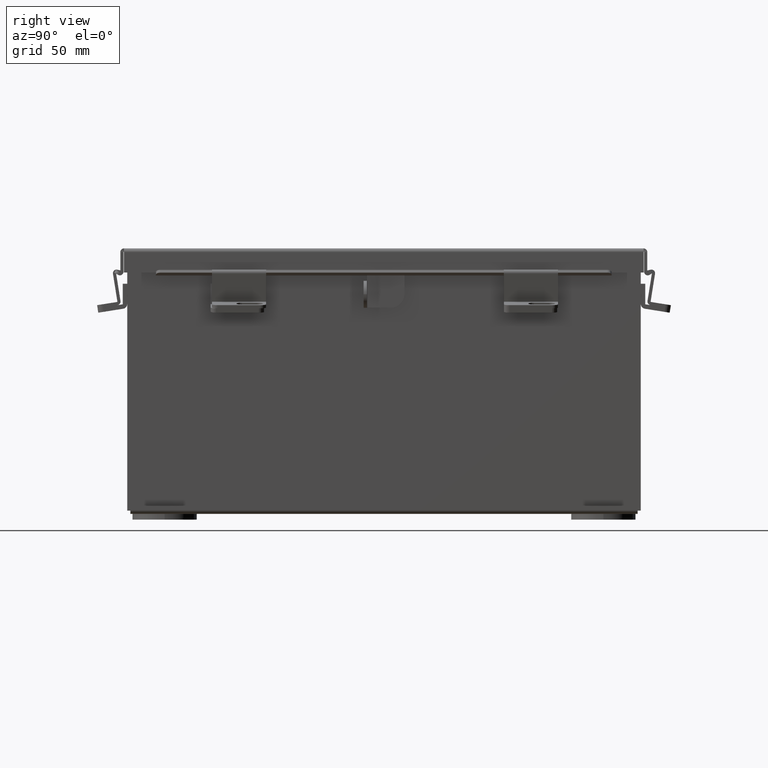
[diagram: clean part render]
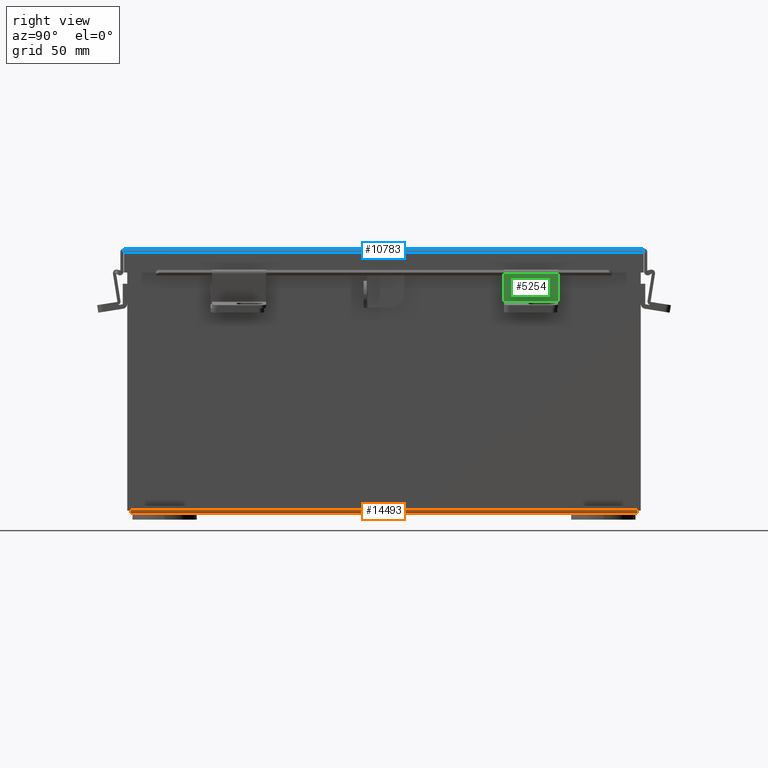
[diagram: same view with three faces highlighted in distinct colors, each labeled with its STEP entity id]
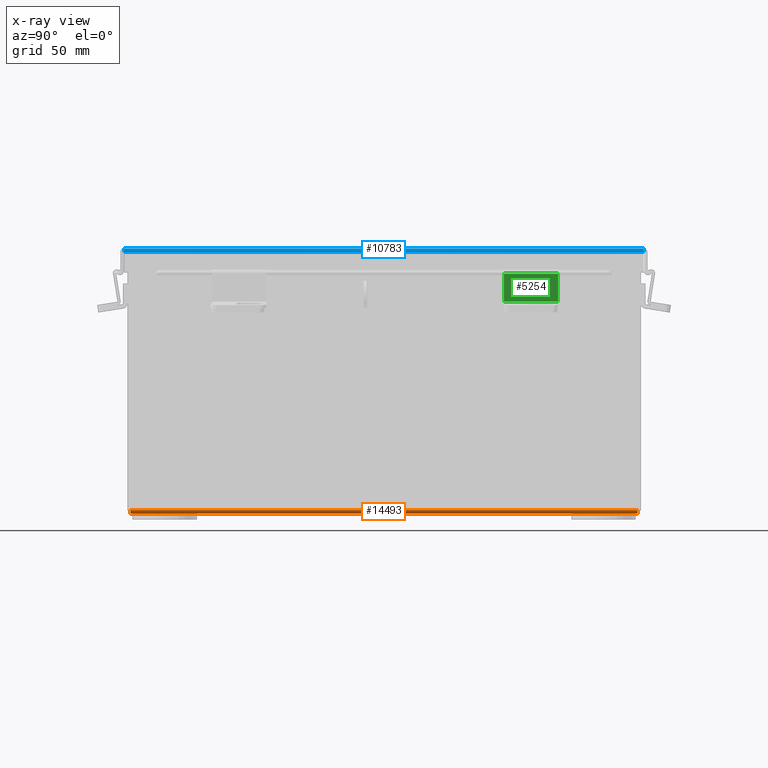
[diagram: x-ray of the same camera — body ghosted, the three highlighted faces saturated]
A machine part, right view with three faces highlighted in distinct colors.
The next image is the same camera in x-ray (body ghosted, the three faces saturated) — at least one of them is partly hidden behind the body in this view.
Their STEP definitions:

[orange] entity #14493 — the highlighted cylindrical surface (edge-blend (fillet) strip) has radius 2.2276 mm, axis along (0, 1, 0).
#335 = CARTESIAN_POINT ( 'NONE',  ( 2.912299999999999200, -5.925300000000000000, -0.07470000000000000300 ) ) ;
#1090 = ORIENTED_EDGE ( 'NONE', *, *, #13892, .F. ) ;
#1809 = ORIENTED_EDGE ( 'NONE', *, *, #7267, .T. ) ;
#1886 = DIRECTION ( 'NONE',  ( -1.593066959076850500E-031, -1.000000000000000000, -4.610480471308228800E-017 ) ) ;
#2710 = CARTESIAN_POINT ( 'NONE',  ( 2.912299999999999200, 5.925300000000000000, 0.01300000000000091900 ) ) ;
#3566 = CYLINDRICAL_SURFACE ( 'NONE', #13938, 0.08770000000000026400 ) ;
#3814 = DIRECTION ( 'NONE',  ( -0.0000000000000000000, -1.000000000000000000, -8.208677865577646300E-017 ) ) ;
#3893 = VERTEX_POINT ( 'NONE', #13418 ) ;
#4218 = CARTESIAN_POINT ( 'NONE',  ( 2.912299999999999200, -5.925300000000000000, 0.01299999999999994600 ) ) ;
#4945 = CARTESIAN_POINT ( 'NONE',  ( 2.999999999999999600, -5.925300000000000000, 0.01299999999999963700 ) ) ;
#5216 = VERTEX_POINT ( 'NONE', #7066 ) ;
#5277 = VERTEX_POINT ( 'NONE', #335 ) ;
#5406 = DIRECTION ( 'NONE',  ( 0.0000000000000000000, 0.0000000000000000000, 1.000000000000000000 ) ) ;
#5456 = CIRCLE ( 'NONE', #14142, 0.08770000000000009700 ) ;
#5617 = VECTOR ( 'NONE', #3814, 39.37007874015748100 ) ;
#5624 = ORIENTED_EDGE ( 'NONE', *, *, #7527, .F. ) ;
#5654 = VECTOR ( 'NONE', #1886, 39.37007874015748100 ) ;
#7066 = CARTESIAN_POINT ( 'NONE',  ( 2.912299999999999200, 5.925299999999997300, -0.07469999999999918400 ) ) ;
#7267 = EDGE_CURVE ( 'NONE', #3893, #15014, #15166, .T. ) ;
#7527 = EDGE_CURVE ( 'NONE', #3893, #5216, #5456, .T. ) ;
#7891 = CARTESIAN_POINT ( 'NONE',  ( 2.999999999999999600, -5.925300000000000000, 0.01299999999999984300 ) ) ;
#7910 = CARTESIAN_POINT ( 'NONE',  ( 2.912299999999999200, 5.925300000000000000, -0.07469999999999918400 ) ) ;
#8002 = DIRECTION ( 'NONE',  ( 0.0000000000000000000, 0.0000000000000000000, 1.000000000000000000 ) ) ;
#8254 = CIRCLE ( 'NONE', #10433, 0.08770000000000009700 ) ;
#8789 = LINE ( 'NONE', #7910, #5617 ) ;
#8816 = EDGE_CURVE ( 'NONE', #5216, #5277, #8789, .T. ) ;
#9741 = EDGE_LOOP ( 'NONE', ( #10903, #5624, #1809, #1090 ) ) ;
#9950 = FACE_OUTER_BOUND ( 'NONE', #9741, .T. ) ;
#10433 = AXIS2_PLACEMENT_3D ( 'NONE', #4218, #12576, #5406 ) ;
#10903 = ORIENTED_EDGE ( 'NONE', *, *, #8816, .F. ) ;
#11121 = DIRECTION ( 'NONE',  ( 1.000000000000000000, 0.0000000000000000000, -3.455694262224952200E-015 ) ) ;
#12576 = DIRECTION ( 'NONE',  ( -0.0000000000000000000, -1.000000000000000000, -8.208677865577646300E-017 ) ) ;
#12855 = CARTESIAN_POINT ( 'NONE',  ( 2.912299999999999200, 5.925299999999997300, 0.01300000000000091900 ) ) ;
#13418 = CARTESIAN_POINT ( 'NONE',  ( 2.999999999999999600, 5.925299999999998200, 0.01300000000000039000 ) ) ;
#13892 = EDGE_CURVE ( 'NONE', #5277, #15014, #8254, .T. ) ;
#13938 = AXIS2_PLACEMENT_3D ( 'NONE', #2710, #14627, #11121 ) ;
#14142 = AXIS2_PLACEMENT_3D ( 'NONE', #12855, #14596, #8002 ) ;
#14493 = ADVANCED_FACE ( 'NONE', ( #9950 ), #3566, .T. ) ;
#14596 = DIRECTION ( 'NONE',  ( 0.0000000000000000000, 1.000000000000000000, 8.208677865577646300E-017 ) ) ;
#14627 = DIRECTION ( 'NONE',  ( 0.0000000000000000000, 1.000000000000000000, 8.208677865577646300E-017 ) ) ;
#15014 = VERTEX_POINT ( 'NONE', #4945 ) ;
#15166 = LINE ( 'NONE', #7891, #5654 ) ;

[blue] entity #10783 — the highlighted cylindrical surface (edge-blend (fillet) strip) has radius 2.2276 mm, axis along (-0, -1, -0).
#145 = LINE ( 'NONE', #8751, #15312 ) ;
#1471 = CARTESIAN_POINT ( 'NONE',  ( -3.068550000000018800, -6.074478932188137400, 0.01300000000000010700 ) ) ;
#1512 = CARTESIAN_POINT ( 'NONE',  ( -3.153967403743831400, -6.073490776823448700, -0.009955289458309212600 ) ) ;
#1659 = EDGE_CURVE ( 'NONE', #7931, #3699, #11394, .T. ) ;
#1704 = CARTESIAN_POINT ( 'NONE',  ( -3.091505289458327700, 6.069538155364688800, -0.07241740374381198900 ) ) ;
#2134 = CARTESIAN_POINT ( 'NONE',  ( -3.153967403743831000, 6.073490776823449600, -0.009955289458309214300 ) ) ;
#2576 = CARTESIAN_POINT ( 'NONE',  ( -3.138680782078339800, -6.072008543776413500, -0.04089574734180055600 ) ) ;
#2715 = CARTESIAN_POINT ( 'NONE',  ( -3.138680782078339300, 6.072008543776413500, -0.04089574734180054900 ) ) ;
#2838 = EDGE_CURVE ( 'NONE', #12186, #7639, #8597, .T. ) ;
#2842 = CARTESIAN_POINT ( 'NONE',  ( -3.112717384578547600, -6.070526310729377400, -0.06363106625866907200 ) ) ;
#3499 = CARTESIAN_POINT ( 'NONE',  ( -3.156250000000019100, -6.074478932188137400, 0.01299999999999901400 ) ) ;
#3661 = CARTESIAN_POINT ( 'NONE',  ( -3.080029903155013100, -6.069044077682347500, -0.07470000000000071000 ) ) ;
#3674 = CARTESIAN_POINT ( 'NONE',  ( -3.122445747341819900, 6.071020388411724000, -0.05713078207832101400 ) ) ;
#3699 = VERTEX_POINT ( 'NONE', #5149 ) ;
#3935 = EDGE_CURVE ( 'NONE', #12186, #3699, #9304, .T. ) ;
#4008 = DIRECTION ( 'NONE',  ( 6.697214100988701600E-031, 1.000000000000000000, 3.106139814307734000E-029 ) ) ;
#4016 = CARTESIAN_POINT ( 'NONE',  ( -3.091505289458328600, -6.069538155364688800, -0.07241740374381196200 ) ) ;
#4764 = CYLINDRICAL_SURFACE ( 'NONE', #8363, 0.08770000000000081900 ) ;
#5045 = CARTESIAN_POINT ( 'NONE',  ( -3.156250000000019500, -6.073984854505791700, 0.001520096845007029700 ) ) ;
#5056 = CARTESIAN_POINT ( 'NONE',  ( -3.068550000000018800, -6.068550000000000100, -0.07470000000000015500 ) ) ;
#5149 = CARTESIAN_POINT ( 'NONE',  ( -3.156250000000019100, 6.074478932188137400, 0.01300000000000010700 ) ) ;
#5354 = CARTESIAN_POINT ( 'NONE',  ( -3.068550000000019200, 6.068550000000000100, -0.07470000000000015500 ) ) ;
#6103 = VECTOR ( 'NONE', #7504, 39.37007874015748100 ) ;
#6225 = CARTESIAN_POINT ( 'NONE',  ( -3.080029903155011400, 6.069044077682344900, -0.07470000000000068300 ) ) ;
#6771 = ORIENTED_EDGE ( 'NONE', *, *, #13797, .F. ) ;
#7504 = DIRECTION ( 'NONE',  ( 6.697214100988701600E-031, 1.000000000000000000, 3.106139814307734000E-029 ) ) ;
#7639 = VERTEX_POINT ( 'NONE', #5056 ) ;
#7702 = CARTESIAN_POINT ( 'NONE',  ( -3.156250000000019500, 6.073984854505791700, 0.001520096845007030400 ) ) ;
#7771 = DIRECTION ( 'NONE',  ( -6.697214100988702500E-031, -1.000000000000000000, -3.106139814307734000E-029 ) ) ;
#7931 = VERTEX_POINT ( 'NONE', #9531 ) ;
#8363 = AXIS2_PLACEMENT_3D ( 'NONE', #1471, #7771, #11044 ) ;
#8597 = B_SPLINE_CURVE_WITH_KNOTS ( 'NONE', 3,
 ( #3499, #5045, #1512, #12275, #2576, #12021, #2842, #4016, #3661, #12380 ),
 .UNSPECIFIED., .F., .F.,
 ( 4, 2, 2, 2, 4 ),
 ( 0.0000000000000000000, 0.2500000000000000600, 0.5000000000000000000, 0.7500000000000000000, 1.000000000000000000 ),
 .UNSPECIFIED. ) ;
#8751 = CARTESIAN_POINT ( 'NONE',  ( -3.068550000000018800, -6.074478932188137400, -0.07470000000000015500 ) ) ;
#9304 = LINE ( 'NONE', #10802, #6103 ) ;
#9531 = CARTESIAN_POINT ( 'NONE',  ( -3.068550000000019200, 6.068550000000000100, -0.07470000000000015500 ) ) ;
#9646 = CARTESIAN_POINT ( 'NONE',  ( -3.112717384578546700, 6.070526310729377400, -0.06363106625866905800 ) ) ;
#10249 = CARTESIAN_POINT ( 'NONE',  ( -3.156250000000019100, 6.074478932188137400, 0.01300000000000010700 ) ) ;
#10312 = ORIENTED_EDGE ( 'NONE', *, *, #1659, .F. ) ;
#10498 = ORIENTED_EDGE ( 'NONE', *, *, #2838, .F. ) ;
#10783 = ADVANCED_FACE ( 'NONE', ( #14334 ), #4764, .T. ) ;
#10802 = CARTESIAN_POINT ( 'NONE',  ( -3.156250000000019100, 6.156249999999998200, 0.01300000000000010700 ) ) ;
#11044 = DIRECTION ( 'NONE',  ( -1.000000000000000000, 0.0000000000000000000, -3.358350761880565600E-015 ) ) ;
#11394 = B_SPLINE_CURVE_WITH_KNOTS ( 'NONE', 3,
 ( #5354, #6225, #1704, #9646, #3674, #2715, #12884, #2134, #7702, #10249 ),
 .UNSPECIFIED., .F., .F.,
 ( 4, 2, 2, 2, 4 ),
 ( 0.0000000000000000000, 0.2500000000000000000, 0.5000000000000000000, 0.7500000000000000000, 1.000000000000000000 ),
 .UNSPECIFIED. ) ;
#12009 = CARTESIAN_POINT ( 'NONE',  ( -3.156250000000019100, -6.074478932188137400, 0.01299999999999901400 ) ) ;
#12021 = CARTESIAN_POINT ( 'NONE',  ( -3.122445747341820300, -6.071020388411725800, -0.05713078207832102800 ) ) ;
#12186 = VERTEX_POINT ( 'NONE', #12009 ) ;
#12275 = CARTESIAN_POINT ( 'NONE',  ( -3.145181066258688300, -6.072502621458758300, -0.03116738457852834300 ) ) ;
#12380 = CARTESIAN_POINT ( 'NONE',  ( -3.068550000000018800, -6.068550000000000100, -0.07470000000000015500 ) ) ;
#12884 = CARTESIAN_POINT ( 'NONE',  ( -3.145181066258688800, 6.072502621458759200, -0.03116738457852834600 ) ) ;
#12981 = EDGE_LOOP ( 'NONE', ( #6771, #10498, #14151, #10312 ) ) ;
#13797 = EDGE_CURVE ( 'NONE', #7639, #7931, #145, .T. ) ;
#14151 = ORIENTED_EDGE ( 'NONE', *, *, #3935, .T. ) ;
#14334 = FACE_OUTER_BOUND ( 'NONE', #12981, .T. ) ;
#15312 = VECTOR ( 'NONE', #4008, 39.37007874015748100 ) ;

[green] entity #5254 — the highlighted planar face has unit normal (-0.9877, 0, 0.1564).
#856 = VECTOR ( 'NONE', #12941, 39.37007874015748100 ) ;
#1881 = PLANE ( 'NONE',  #14061 ) ;
#1941 = DIRECTION ( 'NONE',  ( 2.091651531891702700E-015, 3.330669073875449900E-016, -1.000000000000000000 ) ) ;
#2010 = CARTESIAN_POINT ( 'NONE',  ( 0.6324999999999998400, -0.4174999999999908200, 2.103522955121482700E-014 ) ) ;
#2437 = VECTOR ( 'NONE', #6056, 39.37007874015748100 ) ;
#2555 = CARTESIAN_POINT ( 'NONE',  ( -0.6324999999999998400, 0.3243453803252517900, 5.736880786694953000E-015 ) ) ;
#2822 = LINE ( 'NONE', #13234, #2437 ) ;
#4470 = VERTEX_POINT ( 'NONE', #4649 ) ;
#4613 = DIRECTION ( 'NONE',  ( -1.000000000000000000, -3.560584499718061100E-016, -2.091651531891702700E-015 ) ) ;
#4649 = CARTESIAN_POINT ( 'NONE',  ( 0.6324999999999998400, 0.3243453803252529000, 1.283968557022203800E-014 ) ) ;
#4819 = DIRECTION ( 'NONE',  ( -1.000000000000000000, -3.560584499718061100E-016, -2.091651531891702700E-015 ) ) ;
#5033 = ORIENTED_EDGE ( 'NONE', *, *, #6278, .F. ) ;
#5254 = ADVANCED_FACE ( 'NONE', ( #14150 ), #1881, .F. ) ;
#5301 = VERTEX_POINT ( 'NONE', #2555 ) ;
#6056 = DIRECTION ( 'NONE',  ( -3.560584499718046800E-016, -1.000000000000000000, 4.163336342344335100E-016 ) ) ;
#6184 = VECTOR ( 'NONE', #14687, 39.37007874015748100 ) ;
#6278 = EDGE_CURVE ( 'NONE', #10864, #8386, #8497, .T. ) ;
#7248 = LINE ( 'NONE', #2010, #856 ) ;
#8133 = VECTOR ( 'NONE', #4613, 39.37007874015748100 ) ;
#8386 = VERTEX_POINT ( 'NONE', #13708 ) ;
#8497 = LINE ( 'NONE', #13495, #8133 ) ;
#9390 = LINE ( 'NONE', #12324, #6184 ) ;
#9425 = EDGE_CURVE ( 'NONE', #10864, #4470, #7248, .T. ) ;
#9440 = CARTESIAN_POINT ( 'NONE',  ( 0.6324999999999998400, -0.3345000000000004600, 1.202013117212275700E-014 ) ) ;
#10019 = EDGE_LOOP ( 'NONE', ( #10681, #12726, #5033, #13163 ) ) ;
#10681 = ORIENTED_EDGE ( 'NONE', *, *, #13794, .T. ) ;
#10864 = VERTEX_POINT ( 'NONE', #9440 ) ;
#12324 = CARTESIAN_POINT ( 'NONE',  ( 0.6324999999999998400, 0.3243453803252529000, 1.283968557022203800E-014 ) ) ;
#12726 = ORIENTED_EDGE ( 'NONE', *, *, #13080, .T. ) ;
#12941 = DIRECTION ( 'NONE',  ( 3.560584499718046800E-016, 1.000000000000000000, -4.163336342344335100E-016 ) ) ;
#13080 = EDGE_CURVE ( 'NONE', #5301, #8386, #2822, .T. ) ;
#13163 = ORIENTED_EDGE ( 'NONE', *, *, #9425, .T. ) ;
#13234 = CARTESIAN_POINT ( 'NONE',  ( -0.6324999999999998400, -0.4174999999999973700, 3.005032793030689300E-015 ) ) ;
#13495 = CARTESIAN_POINT ( 'NONE',  ( 0.6324999999999998400, -0.3345000000000004600, 1.202013117212275700E-014 ) ) ;
#13708 = CARTESIAN_POINT ( 'NONE',  ( -0.6324999999999998400, -0.3344999999999950200, 4.370956789862821100E-015 ) ) ;
#13794 = EDGE_CURVE ( 'NONE', #4470, #5301, #9390, .T. ) ;
#14061 = AXIS2_PLACEMENT_3D ( 'NONE', #15305, #1941, #4819 ) ;
#14150 = FACE_OUTER_BOUND ( 'NONE', #10019, .T. ) ;
#14687 = DIRECTION ( 'NONE',  ( -1.000000000000000000, -3.560584499718061100E-016, -2.091651531891702700E-015 ) ) ;
#15305 = CARTESIAN_POINT ( 'NONE',  ( 0.6324999999999998400, 0.4175000000000148600, 1.338605516895488900E-014 ) ) ;